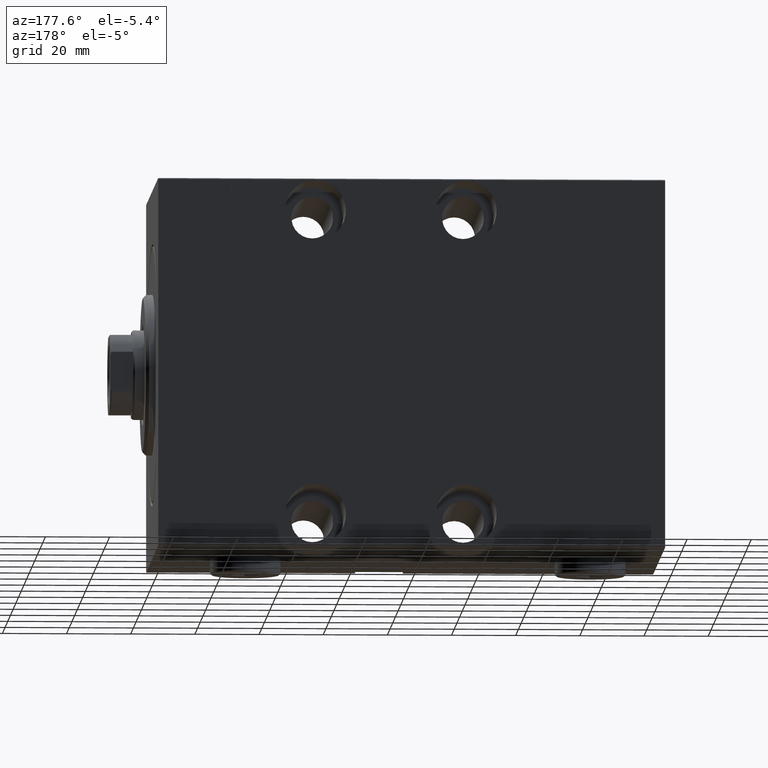
[diagram: clean part render]
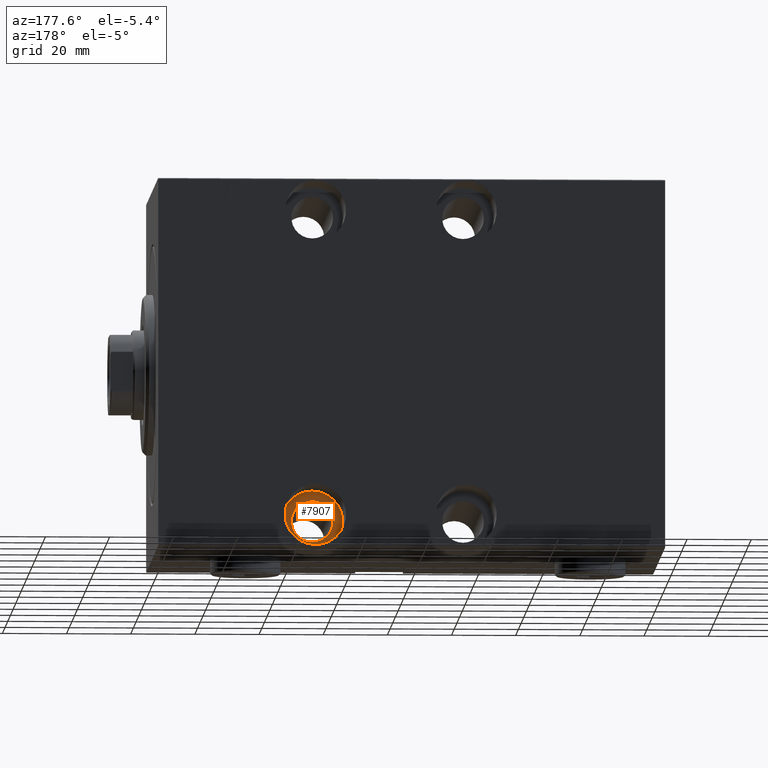
[diagram: same view with one face highlighted and labeled with its STEP entity id]
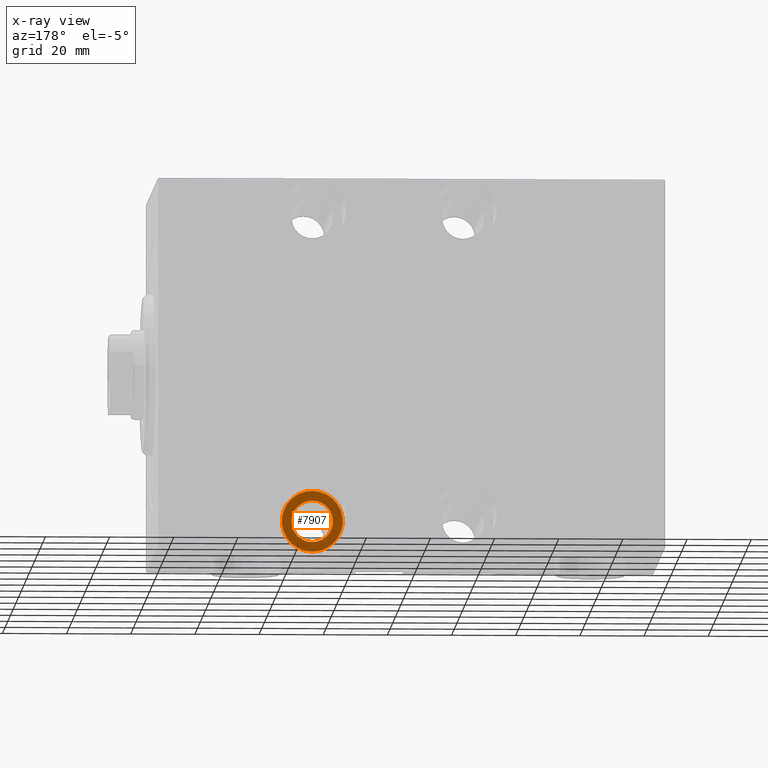
[diagram: x-ray of the same camera — body ghosted, the highlighted face saturated]
A machine part, auxiliary view. The second image highlights one B-rep face of the part: STEP entity #7907.
The next image is the same camera in x-ray: the body ghosted, the highlighted face saturated — about 0% of this face is hidden behind the body in this view.
In plain terms, the highlighted planar face has unit normal (-0, 1, 0).
Its self-contained STEP definition (entity closure, byte-faithful):
#1074 = VERTEX_POINT ( 'NONE', #2448 ) ;
#1601 = CARTESIAN_POINT ( 'NONE',  ( 48.99999999999997158, -20.99999999999999645, -47.49999999999997868 ) ) ;
#2419 = DIRECTION ( 'NONE',  ( 0.000000000000000000, -1.000000000000000000, 0.000000000000000000 ) ) ;
#2448 = CARTESIAN_POINT ( 'NONE',  ( 48.99999999999997158, -20.99999999999999645, -40.99999999999997868 ) ) ;
#3334 = CARTESIAN_POINT ( 'NONE',  ( 48.99999999999997158, -20.99999999999999645, -47.49999999999997868 ) ) ;
#3887 = CARTESIAN_POINT ( 'NONE',  ( 48.99999999999997158, -20.99999999999999645, -47.49999999999997868 ) ) ;
#7255 = EDGE_CURVE ( 'NONE', #12370, #21652, #36673, .T. ) ;
#7907 = ADVANCED_FACE ( 'NONE', ( #25595, #19078 ), #42894, .T. ) ;
#9387 = EDGE_LOOP ( 'NONE', ( #43075, #30144 ) ) ;
#11831 = AXIS2_PLACEMENT_3D ( 'NONE', #3887, #24074, #38238 ) ;
#12370 = VERTEX_POINT ( 'NONE', #15165 ) ;
#13617 = ORIENTED_EDGE ( 'NONE', *, *, #39437, .T. ) ;
#13746 = AXIS2_PLACEMENT_3D ( 'NONE', #1601, #32992, #35720 ) ;
#14037 = DIRECTION ( 'NONE',  ( -0.000000000000000000, 1.000000000000000000, -0.000000000000000000 ) ) ;
#15165 = CARTESIAN_POINT ( 'NONE',  ( 48.99999999999997158, -20.99999999999999645, -56.99999999999997868 ) ) ;
#16159 = AXIS2_PLACEMENT_3D ( 'NONE', #24788, #14037, #17851 ) ;
#16204 = CARTESIAN_POINT ( 'NONE',  ( 48.99999999999997158, -20.99999999999999645, -37.99999999999997868 ) ) ;
#16403 = CARTESIAN_POINT ( 'NONE',  ( 48.99999999999997158, -20.99999999999999645, -53.99999999999997868 ) ) ;
#16772 = DIRECTION ( 'NONE',  ( 0.000000000000000000, 0.000000000000000000, -1.000000000000000000 ) ) ;
#16931 = EDGE_CURVE ( 'NONE', #21652, #12370, #23283, .T. ) ;
#17851 = DIRECTION ( 'NONE',  ( 0.000000000000000000, 0.000000000000000000, -1.000000000000000000 ) ) ;
#19078 = FACE_BOUND ( 'NONE', #30492, .T. ) ;
#20486 = CIRCLE ( 'NONE', #16159, 6.499999999999999112 ) ;
#21652 = VERTEX_POINT ( 'NONE', #16204 ) ;
#23283 = CIRCLE ( 'NONE', #11831, 9.500000000000001776 ) ;
#23728 = AXIS2_PLACEMENT_3D ( 'NONE', #39907, #2419, #30011 ) ;
#24074 = DIRECTION ( 'NONE',  ( 0.000000000000000000, -1.000000000000000000, 0.000000000000000000 ) ) ;
#24788 = CARTESIAN_POINT ( 'NONE',  ( 48.99999999999997158, -20.99999999999999645, -47.49999999999997868 ) ) ;
#25595 = FACE_OUTER_BOUND ( 'NONE', #9387, .T. ) ;
#30011 = DIRECTION ( 'NONE',  ( 0.000000000000000000, 0.000000000000000000, -1.000000000000000000 ) ) ;
#30144 = ORIENTED_EDGE ( 'NONE', *, *, #16931, .T. ) ;
#30492 = EDGE_LOOP ( 'NONE', ( #13617, #38234 ) ) ;
#32992 = DIRECTION ( 'NONE',  ( 0.000000000000000000, -1.000000000000000000, 0.000000000000000000 ) ) ;
#35720 = DIRECTION ( 'NONE',  ( 0.000000000000000000, -0.000000000000000000, -1.000000000000000000 ) ) ;
#36673 = CIRCLE ( 'NONE', #23728, 9.500000000000001776 ) ;
#36846 = EDGE_CURVE ( 'NONE', #39872, #1074, #41205, .T. ) ;
#37653 = AXIS2_PLACEMENT_3D ( 'NONE', #3334, #40154, #16772 ) ;
#38234 = ORIENTED_EDGE ( 'NONE', *, *, #36846, .T. ) ;
#38238 = DIRECTION ( 'NONE',  ( 0.000000000000000000, 0.000000000000000000, -1.000000000000000000 ) ) ;
#39437 = EDGE_CURVE ( 'NONE', #1074, #39872, #20486, .T. ) ;
#39872 = VERTEX_POINT ( 'NONE', #16403 ) ;
#39907 = CARTESIAN_POINT ( 'NONE',  ( 48.99999999999997158, -20.99999999999999645, -47.49999999999997868 ) ) ;
#40154 = DIRECTION ( 'NONE',  ( -0.000000000000000000, 1.000000000000000000, -0.000000000000000000 ) ) ;
#41205 = CIRCLE ( 'NONE', #37653, 6.499999999999999112 ) ;
#42894 = PLANE ( 'NONE',  #13746 ) ;
#43075 = ORIENTED_EDGE ( 'NONE', *, *, #7255, .T. ) ;